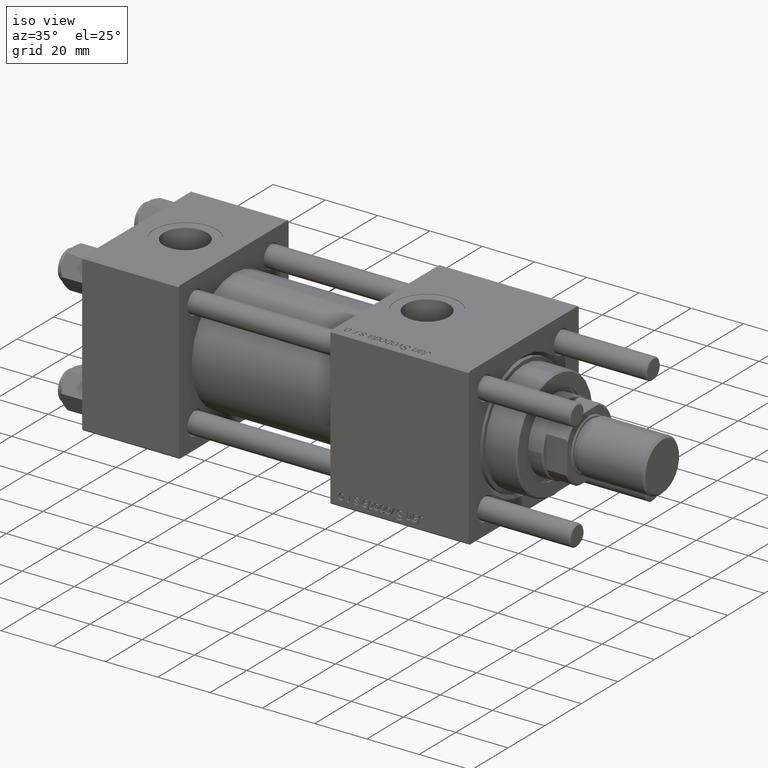
[diagram: clean part render]
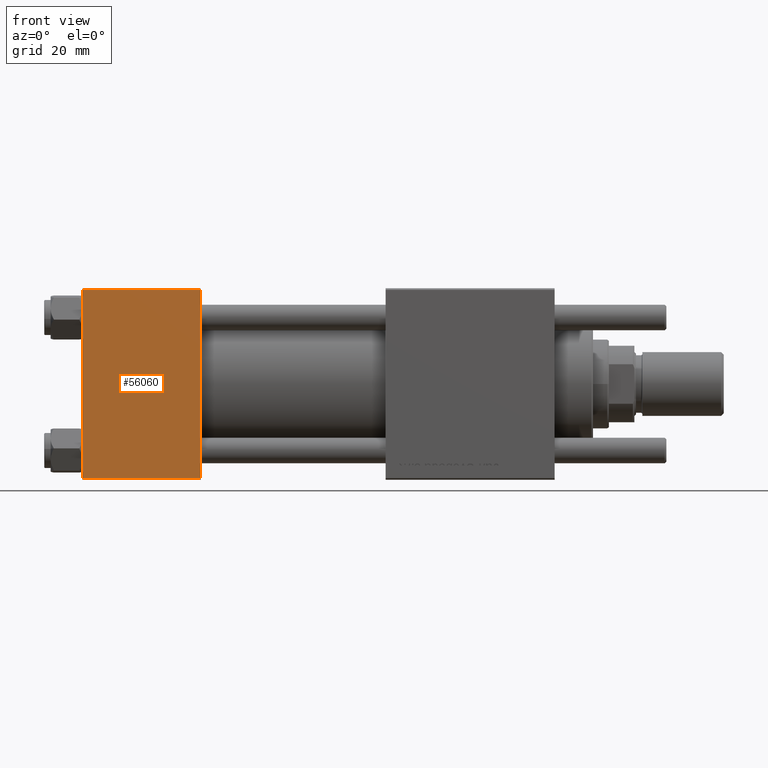
[diagram: tour spotlight — one face highlighted and labeled with its STEP entity id]
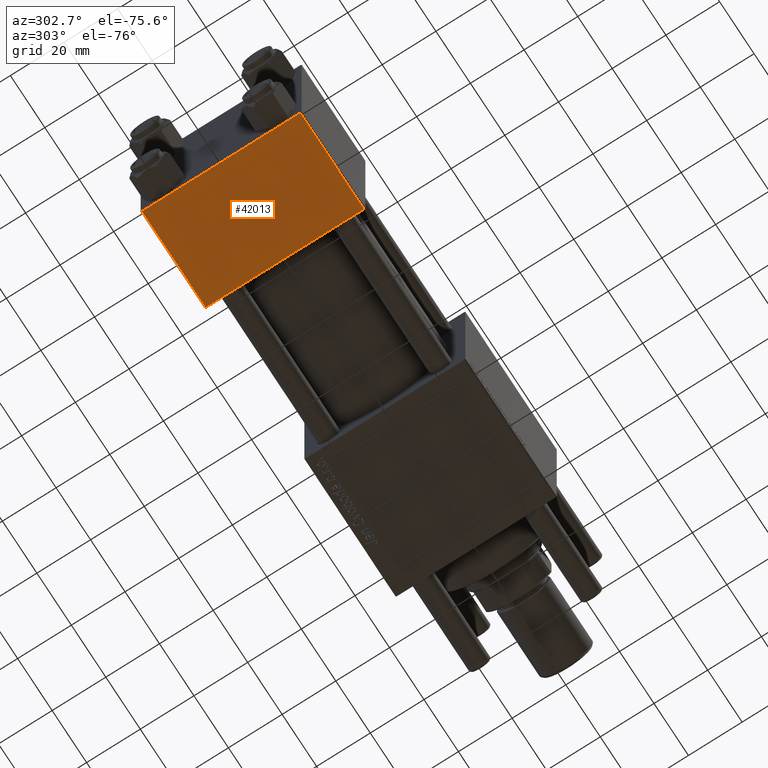
[diagram: tour spotlight — one face highlighted and labeled with its STEP entity id]
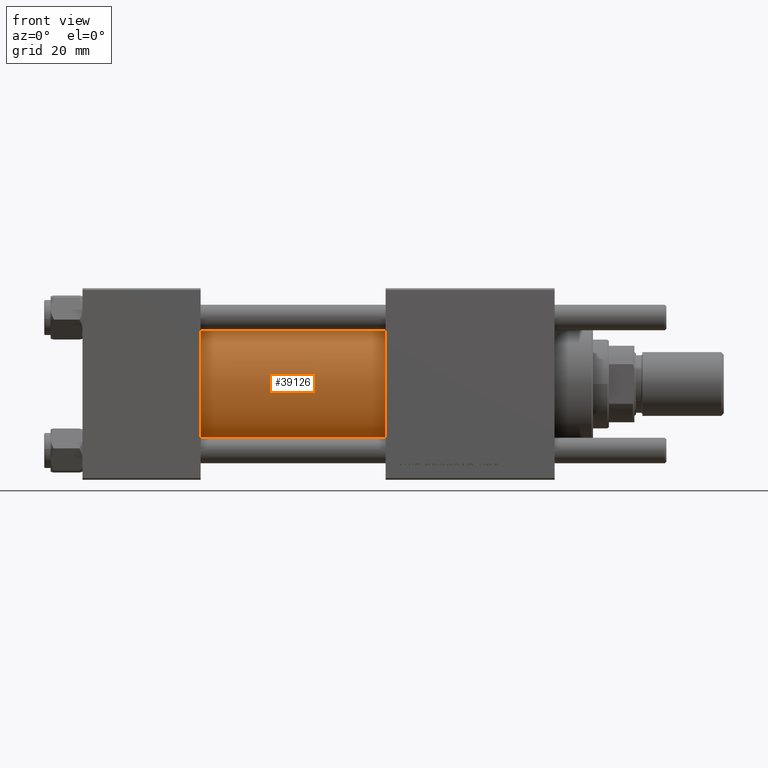
[diagram: tour spotlight — one face highlighted and labeled with its STEP entity id]
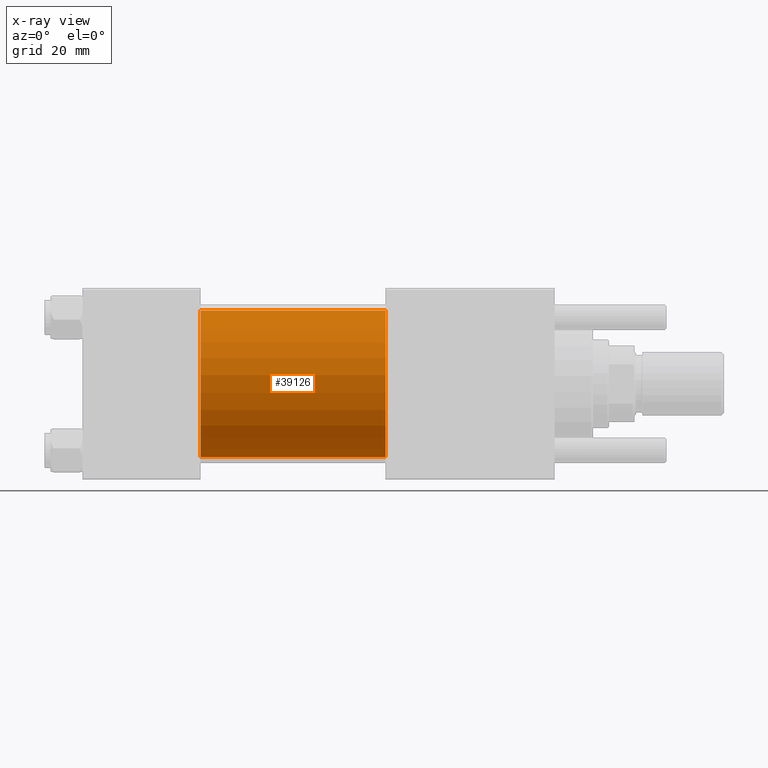
[diagram: x-ray of the same camera — body ghosted, this tour face saturated]
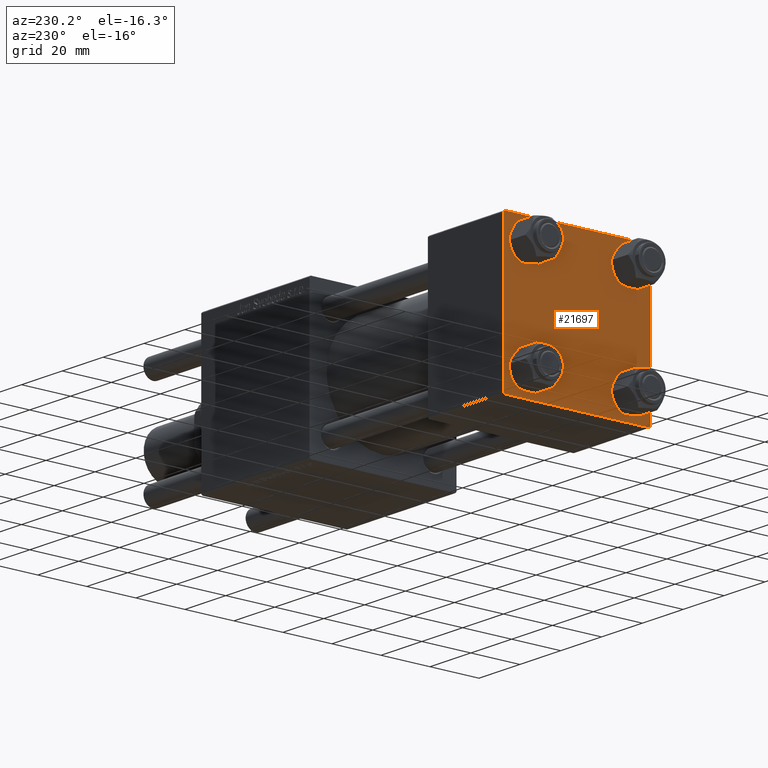
[diagram: tour spotlight — one face highlighted and labeled with its STEP entity id]
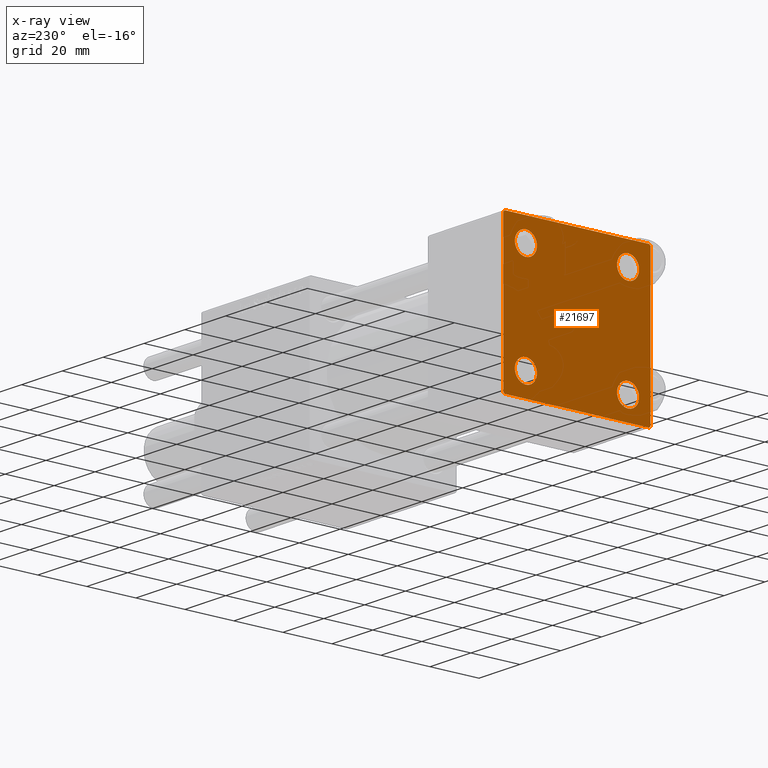
[diagram: x-ray of the same camera — body ghosted, this tour face saturated]
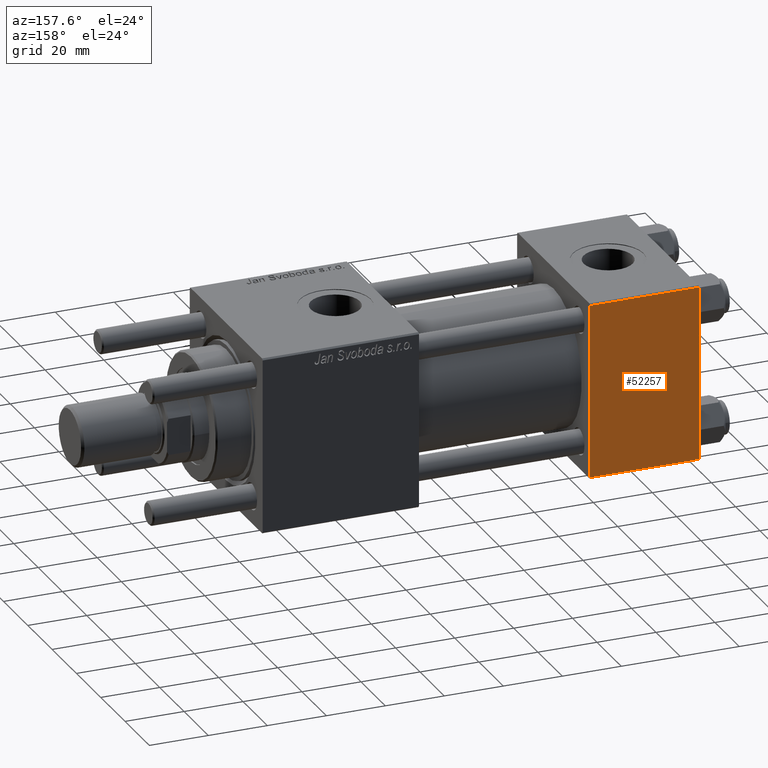
[diagram: tour spotlight — one face highlighted and labeled with its STEP entity id]
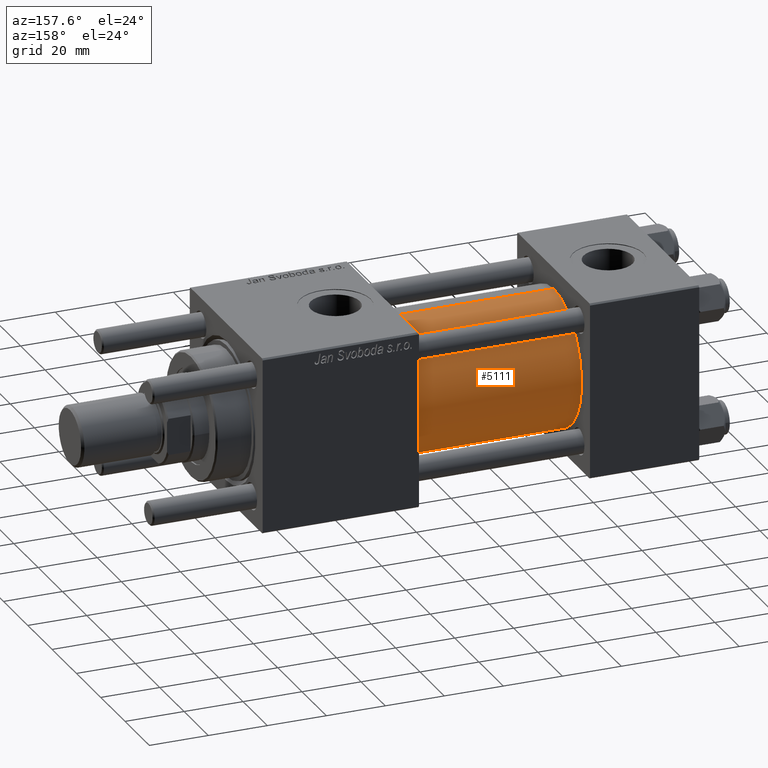
[diagram: tour spotlight — one face highlighted and labeled with its STEP entity id]
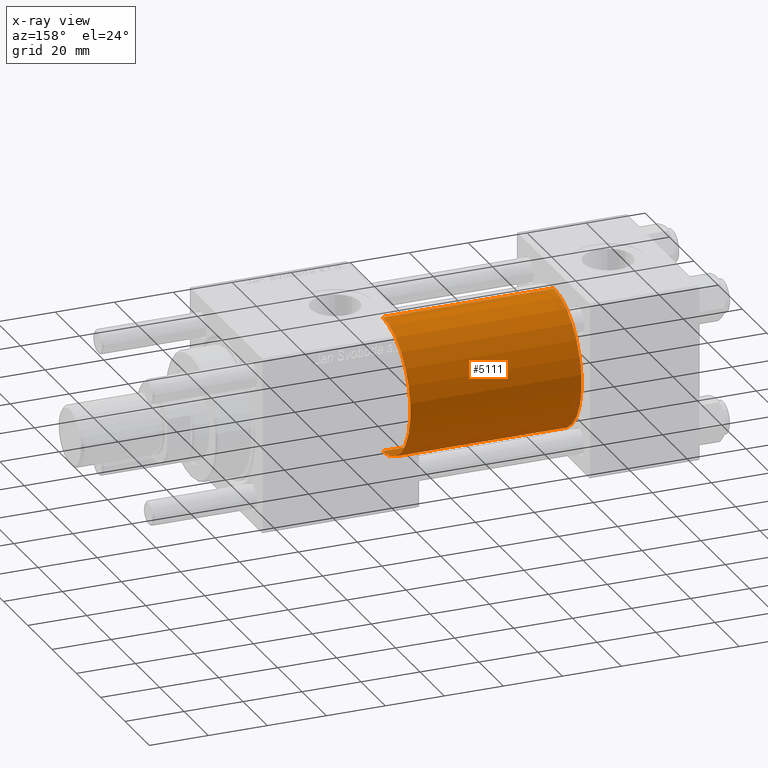
[diagram: x-ray of the same camera — body ghosted, this tour face saturated]
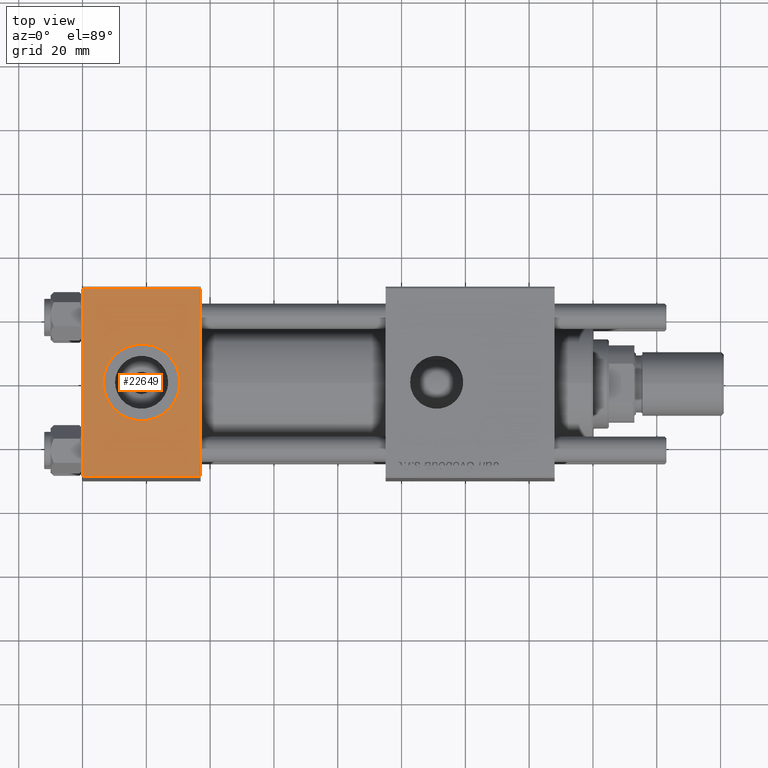
[diagram: tour spotlight — one face highlighted and labeled with its STEP entity id]
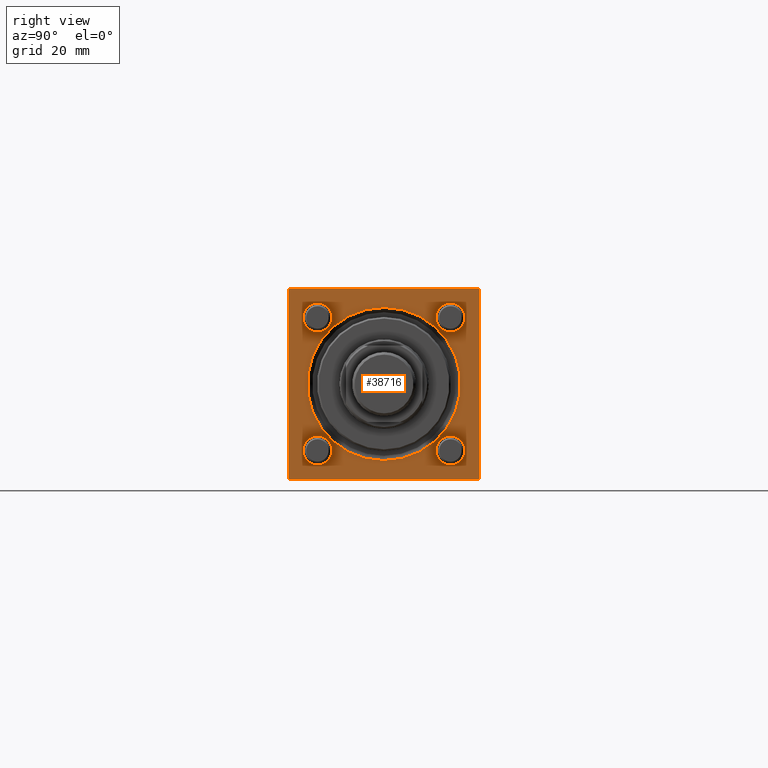
[diagram: tour spotlight — one face highlighted and labeled with its STEP entity id]
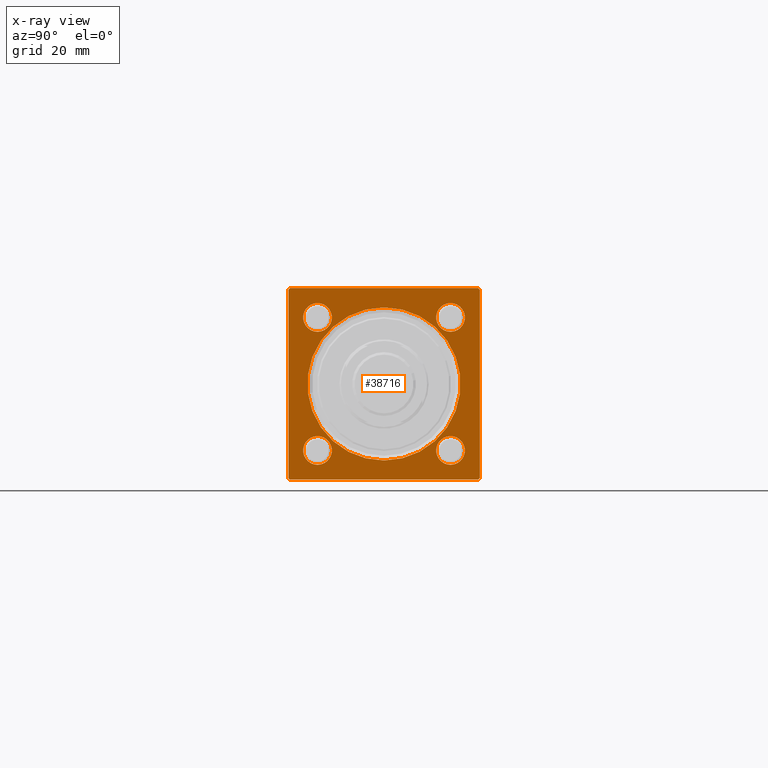
[diagram: x-ray of the same camera — body ghosted, this tour face saturated]
A machine part: a face-by-face anatomy tour. The part has 1173 B-rep faces; the first image is the clean iso view, then the 8 largest visible faces are spotlighted one at a time (largest first), each with its STEP entity span.

Face 1 — front view, entity #56060. In plain terms, the highlighted planar face has unit normal (0, 1, 0).
Definition (entity closure, byte-faithful):
#609 = DIRECTION ( 'NONE',  ( -0.000000000000000000, 1.000000000000000000, 0.000000000000000000 ) ) ;
#716 = LINE ( 'NONE', #9982, #42517 ) ;
#739 = EDGE_CURVE ( 'NONE', #25377, #25747, #716, .T. ) ;
#1679 = EDGE_LOOP ( 'NONE', ( #31847, #15416, #33914, #16651 ) ) ;
#3484 = VECTOR ( 'NONE', #41322, 1000.000000000000000 ) ;
#4329 = CARTESIAN_POINT ( 'NONE',  ( 37.00000000000000000, -30.00000000000000000, -29.50000000000001776 ) ) ;
#9026 = DIRECTION ( 'NONE',  ( 0.000000000000000000, -0.000000000000000000, 1.000000000000000000 ) ) ;
#9982 = CARTESIAN_POINT ( 'NONE',  ( 37.00000000000000000, -30.00000000000000000, 29.49999999999999289 ) ) ;
#11288 = LINE ( 'NONE', #21112, #24784 ) ;
#13941 = AXIS2_PLACEMENT_3D ( 'NONE', #35674, #609, #9026 ) ;
#15416 = ORIENTED_EDGE ( 'NONE', *, *, #27719, .T. ) ;
#16651 = ORIENTED_EDGE ( 'NONE', *, *, #739, .T. ) ;
#21112 = CARTESIAN_POINT ( 'NONE',  ( 37.00000000000000000, -30.00000000000000000, 29.99999999999999289 ) ) ;
#21813 = VECTOR ( 'NONE', #55054, 1000.000000000000000 ) ;
#24784 = VECTOR ( 'NONE', #33587, 1000.000000000000000 ) ;
#25377 = VERTEX_POINT ( 'NONE', #51514 ) ;
#25513 = CARTESIAN_POINT ( 'NONE',  ( 0.000000000000000000, -30.00000000000000000, 29.49999999999999289 ) ) ;
#25747 = VERTEX_POINT ( 'NONE', #25513 ) ;
#26980 = FACE_OUTER_BOUND ( 'NONE', #1679, .T. ) ;
#27719 = EDGE_CURVE ( 'NONE', #38371, #56192, #33320, .T. ) ;
#31847 = ORIENTED_EDGE ( 'NONE', *, *, #39520, .T. ) ;
#32282 = DIRECTION ( 'NONE',  ( -1.000000000000000000, 0.000000000000000000, 0.000000000000000000 ) ) ;
#33320 = LINE ( 'NONE', #42015, #21813 ) ;
#33587 = DIRECTION ( 'NONE',  ( 0.000000000000000000, 0.000000000000000000, -1.000000000000000000 ) ) ;
#33914 = ORIENTED_EDGE ( 'NONE', *, *, #39090, .F. ) ;
#35391 = PLANE ( 'NONE',  #13941 ) ;
#35674 = CARTESIAN_POINT ( 'NONE',  ( 37.00000000000000000, -30.00000000000000000, 29.99999999999999289 ) ) ;
#38371 = VERTEX_POINT ( 'NONE', #54168 ) ;
#39090 = EDGE_CURVE ( 'NONE', #25377, #56192, #11288, .T. ) ;
#39520 = EDGE_CURVE ( 'NONE', #25747, #38371, #40760, .T. ) ;
#40760 = LINE ( 'NONE', #49728, #3484 ) ;
#41322 = DIRECTION ( 'NONE',  ( 0.000000000000000000, 0.000000000000000000, -1.000000000000000000 ) ) ;
#42015 = CARTESIAN_POINT ( 'NONE',  ( 37.00000000000000000, -30.00000000000000000, -29.50000000000001776 ) ) ;
#42517 = VECTOR ( 'NONE', #32282, 1000.000000000000000 ) ;
#49728 = CARTESIAN_POINT ( 'NONE',  ( 0.000000000000000000, -30.00000000000000000, 29.99999999999999289 ) ) ;
#51514 = CARTESIAN_POINT ( 'NONE',  ( 37.00000000000000000, -30.00000000000000000, 29.49999999999999289 ) ) ;
#54168 = CARTESIAN_POINT ( 'NONE',  ( 0.000000000000000000, -30.00000000000000000, -29.50000000000001776 ) ) ;
#55054 = DIRECTION ( 'NONE',  ( 1.000000000000000000, 0.000000000000000000, 0.000000000000000000 ) ) ;
#56060 = ADVANCED_FACE ( 'NONE', ( #26980 ), #35391, .F. ) ;
#56192 = VERTEX_POINT ( 'NONE', #4329 ) ;

Face 2 — auxiliary view, entity #42013. In plain terms, the highlighted planar face has unit normal (0, 0, -1).
Definition (entity closure, byte-faithful):
#319 = DIRECTION ( 'NONE',  ( 1.000000000000000000, 0.000000000000000000, 0.000000000000000000 ) ) ;
#1992 = ORIENTED_EDGE ( 'NONE', *, *, #39183, .F. ) ;
#5427 = AXIS2_PLACEMENT_3D ( 'NONE', #15820, #37858, #30288 ) ;
#5515 = ORIENTED_EDGE ( 'NONE', *, *, #12070, .T. ) ;
#7568 = CARTESIAN_POINT ( 'NONE',  ( 0.000000000000000000, -29.50000000000000000, -30.00000000000000711 ) ) ;
#9341 = CARTESIAN_POINT ( 'NONE',  ( 37.00000000000000000, -29.50000000000000000, -30.00000000000000711 ) ) ;
#9429 = VECTOR ( 'NONE', #319, 1000.000000000000000 ) ;
#11752 = LINE ( 'NONE', #52023, #20146 ) ;
#12070 = EDGE_CURVE ( 'NONE', #20610, #15362, #40014, .T. ) ;
#15362 = VERTEX_POINT ( 'NONE', #43471 ) ;
#15820 = CARTESIAN_POINT ( 'NONE',  ( 37.00000000000000000, 29.99999999999999289, -30.00000000000000000 ) ) ;
#17499 = VECTOR ( 'NONE', #54237, 1000.000000000000000 ) ;
#18227 = VERTEX_POINT ( 'NONE', #7568 ) ;
#18557 = CARTESIAN_POINT ( 'NONE',  ( 37.00000000000000000, 29.49999999999997868, -30.00000000000000000 ) ) ;
#20146 = VECTOR ( 'NONE', #43319, 1000.000000000000000 ) ;
#20610 = VERTEX_POINT ( 'NONE', #32007 ) ;
#22809 = LINE ( 'NONE', #48606, #51669 ) ;
#24344 = ORIENTED_EDGE ( 'NONE', *, *, #50314, .T. ) ;
#30288 = DIRECTION ( 'NONE',  ( 0.000000000000000000, 1.000000000000000000, 1.156482317317871725E-16 ) ) ;
#32007 = CARTESIAN_POINT ( 'NONE',  ( 0.000000000000000000, 29.49999999999997868, -30.00000000000000000 ) ) ;
#32342 = ORIENTED_EDGE ( 'NONE', *, *, #42705, .T. ) ;
#35288 = DIRECTION ( 'NONE',  ( 0.000000000000000000, -1.000000000000000000, -1.156482317317871725E-16 ) ) ;
#37858 = DIRECTION ( 'NONE',  ( 0.000000000000000000, 1.156482317317871725E-16, -1.000000000000000000 ) ) ;
#39183 = EDGE_CURVE ( 'NONE', #20610, #18227, #11752, .T. ) ;
#39960 = VERTEX_POINT ( 'NONE', #9341 ) ;
#40014 = LINE ( 'NONE', #18557, #9429 ) ;
#40350 = CARTESIAN_POINT ( 'NONE',  ( 0.000000000000000000, -29.50000000000001066, -30.00000000000000711 ) ) ;
#41320 = EDGE_LOOP ( 'NONE', ( #1992, #5515, #32342, #24344 ) ) ;
#42013 = ADVANCED_FACE ( 'NONE', ( #47104 ), #52036, .T. ) ;
#42705 = EDGE_CURVE ( 'NONE', #15362, #39960, #22809, .T. ) ;
#43319 = DIRECTION ( 'NONE',  ( 0.000000000000000000, -1.000000000000000000, -1.156482317317871725E-16 ) ) ;
#43471 = CARTESIAN_POINT ( 'NONE',  ( 37.00000000000000000, 29.49999999999997868, -30.00000000000000000 ) ) ;
#44966 = LINE ( 'NONE', #40350, #17499 ) ;
#47104 = FACE_OUTER_BOUND ( 'NONE', #41320, .T. ) ;
#48606 = CARTESIAN_POINT ( 'NONE',  ( 37.00000000000000000, 29.99999999999999289, -30.00000000000000000 ) ) ;
#50314 = EDGE_CURVE ( 'NONE', #39960, #18227, #44966, .T. ) ;
#51669 = VECTOR ( 'NONE', #35288, 1000.000000000000000 ) ;
#52023 = CARTESIAN_POINT ( 'NONE',  ( 0.000000000000000000, 29.99999999999999289, -30.00000000000000000 ) ) ;
#52036 = PLANE ( 'NONE',  #5427 ) ;
#54237 = DIRECTION ( 'NONE',  ( -1.000000000000000000, 0.000000000000000000, 0.000000000000000000 ) ) ;

Face 3 — front view, entity #39126. An x-ray twin of the same camera follows (body ghosted, this face saturated) — the face is partly hidden behind the body. In plain terms, the highlighted cylindrical surface (partial cylindrical patch) has radius 23 mm, axis along (-1, -0, -0).
Definition (entity closure, byte-faithful):
#5049 = LINE ( 'NONE', #40112, #6336 ) ;
#5201 = ORIENTED_EDGE ( 'NONE', *, *, #6863, .F. ) ;
#6336 = VECTOR ( 'NONE', #44448, 1000.000000000000000 ) ;
#6863 = EDGE_CURVE ( 'NONE', #13856, #33267, #14016, .T. ) ;
#13186 = CARTESIAN_POINT ( 'NONE',  ( 37.00000000000000000, 2.146024240737012665E-16, -23.00000000000000000 ) ) ;
#13856 = VERTEX_POINT ( 'NONE', #26220 ) ;
#14016 = CIRCLE ( 'NONE', #15869, 23.00000000000000000 ) ;
#15869 = AXIS2_PLACEMENT_3D ( 'NONE', #23737, #36511, #19689 ) ;
#18330 = ORIENTED_EDGE ( 'NONE', *, *, #49216, .F. ) ;
#18919 = EDGE_LOOP ( 'NONE', ( #18330, #5201, #26004, #39441 ) ) ;
#19356 = CIRCLE ( 'NONE', #57333, 23.00000000000000000 ) ;
#19689 = DIRECTION ( 'NONE',  ( 0.000000000000000000, 0.000000000000000000, -1.000000000000000000 ) ) ;
#21271 = VERTEX_POINT ( 'NONE', #13186 ) ;
#21962 = CARTESIAN_POINT ( 'NONE',  ( 95.00000000000000000, -2.602085213965210642E-15, 0.000000000000000000 ) ) ;
#23737 = CARTESIAN_POINT ( 'NONE',  ( 95.00000000000000000, -2.602085213965210642E-15, 0.000000000000000000 ) ) ;
#25336 = DIRECTION ( 'NONE',  ( 0.000000000000000000, 0.000000000000000000, 1.000000000000000000 ) ) ;
#26004 = ORIENTED_EDGE ( 'NONE', *, *, #56111, .T. ) ;
#26220 = CARTESIAN_POINT ( 'NONE',  ( 95.00000000000000000, -2.602085213965210642E-15, 23.00000000000000000 ) ) ;
#26888 = VECTOR ( 'NONE', #45498, 1000.000000000000000 ) ;
#27297 = VERTEX_POINT ( 'NONE', #32237 ) ;
#27959 = CARTESIAN_POINT ( 'NONE',  ( 95.00000000000000000, 2.146024240737012665E-16, -23.00000000000000000 ) ) ;
#28397 = CARTESIAN_POINT ( 'NONE',  ( 95.00000000000000000, -2.602085213965210642E-15, 23.00000000000000000 ) ) ;
#32237 = CARTESIAN_POINT ( 'NONE',  ( 37.00000000000000000, -2.602085213965210642E-15, 23.00000000000000000 ) ) ;
#33267 = VERTEX_POINT ( 'NONE', #27959 ) ;
#35001 = FACE_OUTER_BOUND ( 'NONE', #18919, .T. ) ;
#36511 = DIRECTION ( 'NONE',  ( 1.000000000000000000, 0.000000000000000000, 0.000000000000000000 ) ) ;
#37738 = AXIS2_PLACEMENT_3D ( 'NONE', #21962, #43415, #52682 ) ;
#38667 = CARTESIAN_POINT ( 'NONE',  ( 37.00000000000000000, -2.602085213965210642E-15, 0.000000000000000000 ) ) ;
#39078 = CYLINDRICAL_SURFACE ( 'NONE', #37738, 23.00000000000000000 ) ;
#39126 = ADVANCED_FACE ( 'NONE', ( #35001 ), #39078, .T. ) ;
#39441 = ORIENTED_EDGE ( 'NONE', *, *, #51869, .T. ) ;
#40112 = CARTESIAN_POINT ( 'NONE',  ( 95.00000000000000000, 2.146024240737012665E-16, -23.00000000000000000 ) ) ;
#43415 = DIRECTION ( 'NONE',  ( -1.000000000000000000, -0.000000000000000000, -0.000000000000000000 ) ) ;
#44448 = DIRECTION ( 'NONE',  ( -1.000000000000000000, -0.000000000000000000, -0.000000000000000000 ) ) ;
#45498 = DIRECTION ( 'NONE',  ( -1.000000000000000000, -0.000000000000000000, -0.000000000000000000 ) ) ;
#46072 = LINE ( 'NONE', #28397, #26888 ) ;
#49216 = EDGE_CURVE ( 'NONE', #33267, #21271, #5049, .T. ) ;
#51695 = DIRECTION ( 'NONE',  ( 1.000000000000000000, -0.000000000000000000, 0.000000000000000000 ) ) ;
#51869 = EDGE_CURVE ( 'NONE', #27297, #21271, #19356, .T. ) ;
#52682 = DIRECTION ( 'NONE',  ( 0.000000000000000000, 0.000000000000000000, 1.000000000000000000 ) ) ;
#56111 = EDGE_CURVE ( 'NONE', #13856, #27297, #46072, .T. ) ;
#57333 = AXIS2_PLACEMENT_3D ( 'NONE', #38667, #51695, #25336 ) ;

Face 4 — auxiliary view, entity #21697. An x-ray twin of the same camera follows (body ghosted, this face saturated) — the face is partly hidden behind the body. In plain terms, the highlighted planar face has unit normal (-1, 0, 0).
Definition (entity closure, byte-faithful):
#396 = VECTOR ( 'NONE', #56287, 1000.000000000000114 ) ;
#552 = EDGE_CURVE ( 'NONE', #18227, #38371, #11770, .T. ) ;
#1181 = LINE ( 'NONE', #52788, #25034 ) ;
#1477 = CARTESIAN_POINT ( 'NONE',  ( 0.000000000000000000, 0.000000000000000000, 0.000000000000000000 ) ) ;
#1981 = VERTEX_POINT ( 'NONE', #37888 ) ;
#2066 = DIRECTION ( 'NONE',  ( -1.000000000000000000, 0.000000000000000000, -0.000000000000000000 ) ) ;
#2314 = ORIENTED_EDGE ( 'NONE', *, *, #6584, .T. ) ;
#2813 = CIRCLE ( 'NONE', #17611, 4.500000000000017764 ) ;
#3484 = VECTOR ( 'NONE', #41322, 1000.000000000000000 ) ;
#3742 = ORIENTED_EDGE ( 'NONE', *, *, #45938, .T. ) ;
#3984 = VERTEX_POINT ( 'NONE', #48927 ) ;
#4121 = EDGE_CURVE ( 'NONE', #54496, #28676, #2813, .T. ) ;
#4380 = CARTESIAN_POINT ( 'NONE',  ( 0.000000000000000000, 20.84999999999999787, -20.85000000000000142 ) ) ;
#4393 = VECTOR ( 'NONE', #28951, 999.9999999999998863 ) ;
#4504 = DIRECTION ( 'NONE',  ( 0.000000000000000000, -0.7071067811865474617, 0.7071067811865474617 ) ) ;
#5153 = AXIS2_PLACEMENT_3D ( 'NONE', #4380, #35379, #48698 ) ;
#5668 = VERTEX_POINT ( 'NONE', #50459 ) ;
#5840 = FACE_BOUND ( 'NONE', #8056, .T. ) ;
#6040 = ORIENTED_EDGE ( 'NONE', *, *, #7995, .T. ) ;
#6431 = DIRECTION ( 'NONE',  ( 1.000000000000000000, -0.000000000000000000, 0.000000000000000000 ) ) ;
#6584 = EDGE_CURVE ( 'NONE', #12710, #5668, #26050, .T. ) ;
#6788 = CARTESIAN_POINT ( 'NONE',  ( 0.000000000000000000, -29.49999999999998579, 29.99999999999999289 ) ) ;
#7523 = AXIS2_PLACEMENT_3D ( 'NONE', #20334, #55690, #15982 ) ;
#7568 = CARTESIAN_POINT ( 'NONE',  ( 0.000000000000000000, -29.50000000000000000, -30.00000000000000711 ) ) ;
#7583 = EDGE_LOOP ( 'NONE', ( #47351, #6040 ) ) ;
#7976 = DIRECTION ( 'NONE',  ( 0.000000000000000000, 0.000000000000000000, 1.000000000000000000 ) ) ;
#7995 = EDGE_CURVE ( 'NONE', #28676, #54496, #53856, .T. ) ;
#8056 = EDGE_LOOP ( 'NONE', ( #3742, #2314 ) ) ;
#8674 = ORIENTED_EDGE ( 'NONE', *, *, #23966, .T. ) ;
#9383 = CIRCLE ( 'NONE', #41765, 4.500000000000017764 ) ;
#9899 = ORIENTED_EDGE ( 'NONE', *, *, #39092, .T. ) ;
#10102 = VECTOR ( 'NONE', #37570, 1000.000000000000000 ) ;
#10384 = EDGE_CURVE ( 'NONE', #43332, #3984, #9383, .T. ) ;
#10779 = DIRECTION ( 'NONE',  ( 0.000000000000000000, 0.000000000000000000, 1.000000000000000000 ) ) ;
#10819 = CARTESIAN_POINT ( 'NONE',  ( 0.000000000000000000, -20.84999999999999076, 25.35000000000002274 ) ) ;
#10974 = AXIS2_PLACEMENT_3D ( 'NONE', #49948, #23861, #14322 ) ;
#11681 = EDGE_LOOP ( 'NONE', ( #54147, #39349 ) ) ;
#11752 = LINE ( 'NONE', #52023, #20146 ) ;
#11770 = LINE ( 'NONE', #56094, #21259 ) ;
#12710 = VERTEX_POINT ( 'NONE', #46503 ) ;
#14322 = DIRECTION ( 'NONE',  ( 0.000000000000000000, 0.000000000000000000, 1.000000000000000000 ) ) ;
#15382 = FACE_BOUND ( 'NONE', #21025, .T. ) ;
#15536 = CARTESIAN_POINT ( 'NONE',  ( 0.000000000000000000, 29.99999999999999289, 30.00000000000000000 ) ) ;
#15982 = DIRECTION ( 'NONE',  ( 0.000000000000000000, 0.000000000000000000, 1.000000000000000000 ) ) ;
#16504 = CIRCLE ( 'NONE', #10974, 4.500000000000017764 ) ;
#16763 = DIRECTION ( 'NONE',  ( 1.000000000000000000, -0.000000000000000000, 0.000000000000000000 ) ) ;
#17611 = AXIS2_PLACEMENT_3D ( 'NONE', #21079, #55281, #51223 ) ;
#18227 = VERTEX_POINT ( 'NONE', #7568 ) ;
#18386 = CARTESIAN_POINT ( 'NONE',  ( 0.000000000000000000, 29.49999999999999289, 30.00000000000000000 ) ) ;
#18421 = CIRCLE ( 'NONE', #32307, 4.500000000000017764 ) ;
#18873 = FACE_OUTER_BOUND ( 'NONE', #28737, .T. ) ;
#20146 = VECTOR ( 'NONE', #43319, 1000.000000000000000 ) ;
#20334 = CARTESIAN_POINT ( 'NONE',  ( 0.000000000000000000, -20.84999999999999076, -20.85000000000000497 ) ) ;
#20610 = VERTEX_POINT ( 'NONE', #32007 ) ;
#20752 = ORIENTED_EDGE ( 'NONE', *, *, #54664, .T. ) ;
#20936 = CARTESIAN_POINT ( 'NONE',  ( 0.000000000000000000, 29.99999999999999289, 29.50000000000000000 ) ) ;
#21008 = CARTESIAN_POINT ( 'NONE',  ( 0.000000000000000000, -20.84999999999999076, 20.85000000000000497 ) ) ;
#21025 = EDGE_LOOP ( 'NONE', ( #50098, #52931 ) ) ;
#21079 = CARTESIAN_POINT ( 'NONE',  ( 0.000000000000000000, -20.84999999999999076, 20.85000000000000497 ) ) ;
#21259 = VECTOR ( 'NONE', #4504, 1000.000000000000114 ) ;
#21697 = ADVANCED_FACE ( 'NONE', ( #45519, #5840, #15382, #55089, #18873 ), #46094, .T. ) ;
#22200 = VERTEX_POINT ( 'NONE', #6788 ) ;
#22354 = DIRECTION ( 'NONE',  ( 0.000000000000000000, 0.7071067811865474617, -0.7071067811865474617 ) ) ;
#23861 = DIRECTION ( 'NONE',  ( 1.000000000000000000, -0.000000000000000000, 0.000000000000000000 ) ) ;
#23966 = EDGE_CURVE ( 'NONE', #25747, #22200, #42385, .T. ) ;
#23988 = VERTEX_POINT ( 'NONE', #20936 ) ;
#25034 = VECTOR ( 'NONE', #22354, 1000.000000000000114 ) ;
#25406 = VERTEX_POINT ( 'NONE', #36621 ) ;
#25513 = CARTESIAN_POINT ( 'NONE',  ( 0.000000000000000000, -30.00000000000000000, 29.49999999999999289 ) ) ;
#25747 = VERTEX_POINT ( 'NONE', #25513 ) ;
#26050 = CIRCLE ( 'NONE', #7523, 4.500000000000017764 ) ;
#27491 = EDGE_CURVE ( 'NONE', #25406, #1981, #34756, .T. ) ;
#27847 = DIRECTION ( 'NONE',  ( -0.000000000000000000, 0.000000000000000000, 1.000000000000000000 ) ) ;
#28676 = VERTEX_POINT ( 'NONE', #33622 ) ;
#28737 = EDGE_LOOP ( 'NONE', ( #51798, #9899, #49823, #38292, #53238, #8674, #36540, #20752 ) ) ;
#28951 = DIRECTION ( 'NONE',  ( -0.000000000000000000, -0.7071067811865574537, -0.7071067811865376918 ) ) ;
#29232 = CARTESIAN_POINT ( 'NONE',  ( 0.000000000000000000, 29.74999999999957723, -29.75000000000040501 ) ) ;
#32007 = CARTESIAN_POINT ( 'NONE',  ( 0.000000000000000000, 29.49999999999997868, -30.00000000000000000 ) ) ;
#32307 = AXIS2_PLACEMENT_3D ( 'NONE', #56470, #16763, #39086 ) ;
#33370 = CARTESIAN_POINT ( 'NONE',  ( 0.000000000000000000, 20.84999999999999787, 20.85000000000000142 ) ) ;
#33622 = CARTESIAN_POINT ( 'NONE',  ( 0.000000000000000000, -20.84999999999999076, 16.34999999999998721 ) ) ;
#33654 = AXIS2_PLACEMENT_3D ( 'NONE', #1477, #2066, #27847 ) ;
#34042 = DIRECTION ( 'NONE',  ( 1.000000000000000000, -0.000000000000000000, 0.000000000000000000 ) ) ;
#34046 = DIRECTION ( 'NONE',  ( 1.000000000000000000, -0.000000000000000000, 0.000000000000000000 ) ) ;
#34756 = CIRCLE ( 'NONE', #5153, 4.500000000000017764 ) ;
#35379 = DIRECTION ( 'NONE',  ( 1.000000000000000000, -0.000000000000000000, 0.000000000000000000 ) ) ;
#36540 = ORIENTED_EDGE ( 'NONE', *, *, #50201, .F. ) ;
#36621 = CARTESIAN_POINT ( 'NONE',  ( 0.000000000000000000, 20.84999999999999787, -16.34999999999998366 ) ) ;
#37570 = DIRECTION ( 'NONE',  ( 0.000000000000000000, -1.000000000000000000, -1.156482317317871725E-16 ) ) ;
#37888 = CARTESIAN_POINT ( 'NONE',  ( 0.000000000000000000, 20.84999999999999787, -25.35000000000001918 ) ) ;
#38292 = ORIENTED_EDGE ( 'NONE', *, *, #552, .T. ) ;
#38371 = VERTEX_POINT ( 'NONE', #54168 ) ;
#38891 = CARTESIAN_POINT ( 'NONE',  ( 0.000000000000000000, 29.99999999999999289, 30.00000000000000000 ) ) ;
#38934 = LINE ( 'NONE', #15536, #10102 ) ;
#39086 = DIRECTION ( 'NONE',  ( 0.000000000000000000, 0.000000000000000000, 1.000000000000000000 ) ) ;
#39092 = EDGE_CURVE ( 'NONE', #42112, #20610, #55895, .T. ) ;
#39183 = EDGE_CURVE ( 'NONE', #20610, #18227, #11752, .T. ) ;
#39264 = CARTESIAN_POINT ( 'NONE',  ( 0.000000000000000000, 20.84999999999999787, 20.85000000000000142 ) ) ;
#39349 = ORIENTED_EDGE ( 'NONE', *, *, #49114, .T. ) ;
#39520 = EDGE_CURVE ( 'NONE', #25747, #38371, #40760, .T. ) ;
#39795 = VERTEX_POINT ( 'NONE', #18386 ) ;
#40760 = LINE ( 'NONE', #49728, #3484 ) ;
#41322 = DIRECTION ( 'NONE',  ( 0.000000000000000000, 0.000000000000000000, -1.000000000000000000 ) ) ;
#41765 = AXIS2_PLACEMENT_3D ( 'NONE', #33370, #6431, #10779 ) ;
#42112 = VERTEX_POINT ( 'NONE', #53452 ) ;
#42288 = EDGE_CURVE ( 'NONE', #1981, #25406, #16504, .T. ) ;
#42385 = LINE ( 'NONE', #51361, #396 ) ;
#42447 = CIRCLE ( 'NONE', #56308, 4.500000000000017764 ) ;
#42702 = CARTESIAN_POINT ( 'NONE',  ( 0.000000000000000000, 20.84999999999999787, 25.35000000000001918 ) ) ;
#43319 = DIRECTION ( 'NONE',  ( 0.000000000000000000, -1.000000000000000000, -1.156482317317871725E-16 ) ) ;
#43332 = VERTEX_POINT ( 'NONE', #42702 ) ;
#45519 = FACE_BOUND ( 'NONE', #7583, .T. ) ;
#45938 = EDGE_CURVE ( 'NONE', #5668, #12710, #18421, .T. ) ;
#46094 = PLANE ( 'NONE',  #33654 ) ;
#46503 = CARTESIAN_POINT ( 'NONE',  ( 0.000000000000000000, -20.84999999999999076, -25.35000000000002274 ) ) ;
#47351 = ORIENTED_EDGE ( 'NONE', *, *, #4121, .T. ) ;
#47574 = DIRECTION ( 'NONE',  ( 0.000000000000000000, 0.000000000000000000, -1.000000000000000000 ) ) ;
#48698 = DIRECTION ( 'NONE',  ( 0.000000000000000000, 0.000000000000000000, 1.000000000000000000 ) ) ;
#48927 = CARTESIAN_POINT ( 'NONE',  ( 0.000000000000000000, 20.84999999999999787, 16.34999999999998366 ) ) ;
#49114 = EDGE_CURVE ( 'NONE', #3984, #43332, #42447, .T. ) ;
#49728 = CARTESIAN_POINT ( 'NONE',  ( 0.000000000000000000, -30.00000000000000000, 29.99999999999999289 ) ) ;
#49823 = ORIENTED_EDGE ( 'NONE', *, *, #39183, .T. ) ;
#49948 = CARTESIAN_POINT ( 'NONE',  ( 0.000000000000000000, 20.84999999999999787, -20.85000000000000142 ) ) ;
#50098 = ORIENTED_EDGE ( 'NONE', *, *, #27491, .T. ) ;
#50201 = EDGE_CURVE ( 'NONE', #39795, #22200, #38934, .T. ) ;
#50459 = CARTESIAN_POINT ( 'NONE',  ( 0.000000000000000000, -20.84999999999999076, -16.34999999999998721 ) ) ;
#51223 = DIRECTION ( 'NONE',  ( 0.000000000000000000, 0.000000000000000000, 1.000000000000000000 ) ) ;
#51361 = CARTESIAN_POINT ( 'NONE',  ( -0.000000000000000000, -29.74999999999999645, 29.74999999999999645 ) ) ;
#51716 = DIRECTION ( 'NONE',  ( 0.000000000000000000, 0.000000000000000000, 1.000000000000000000 ) ) ;
#51798 = ORIENTED_EDGE ( 'NONE', *, *, #53799, .T. ) ;
#51989 = AXIS2_PLACEMENT_3D ( 'NONE', #21008, #34042, #51716 ) ;
#52023 = CARTESIAN_POINT ( 'NONE',  ( 0.000000000000000000, 29.99999999999999289, -30.00000000000000000 ) ) ;
#52788 = CARTESIAN_POINT ( 'NONE',  ( 0.000000000000000000, 29.74999999999999645, 29.74999999999999645 ) ) ;
#52931 = ORIENTED_EDGE ( 'NONE', *, *, #42288, .T. ) ;
#53238 = ORIENTED_EDGE ( 'NONE', *, *, #39520, .F. ) ;
#53452 = CARTESIAN_POINT ( 'NONE',  ( 0.000000000000000000, 29.99999999999999289, -29.50000000000000000 ) ) ;
#53799 = EDGE_CURVE ( 'NONE', #23988, #42112, #56843, .T. ) ;
#53856 = CIRCLE ( 'NONE', #51989, 4.500000000000017764 ) ;
#54147 = ORIENTED_EDGE ( 'NONE', *, *, #10384, .T. ) ;
#54168 = CARTESIAN_POINT ( 'NONE',  ( 0.000000000000000000, -30.00000000000000000, -29.50000000000001776 ) ) ;
#54496 = VERTEX_POINT ( 'NONE', #10819 ) ;
#54664 = EDGE_CURVE ( 'NONE', #39795, #23988, #1181, .T. ) ;
#55089 = FACE_BOUND ( 'NONE', #11681, .T. ) ;
#55281 = DIRECTION ( 'NONE',  ( 1.000000000000000000, -0.000000000000000000, 0.000000000000000000 ) ) ;
#55690 = DIRECTION ( 'NONE',  ( 1.000000000000000000, -0.000000000000000000, 0.000000000000000000 ) ) ;
#55895 = LINE ( 'NONE', #29232, #4393 ) ;
#56094 = CARTESIAN_POINT ( 'NONE',  ( 0.000000000000000000, -29.75000000000001066, -29.75000000000001066 ) ) ;
#56287 = DIRECTION ( 'NONE',  ( -0.000000000000000000, 0.7071067811865474617, 0.7071067811865474617 ) ) ;
#56308 = AXIS2_PLACEMENT_3D ( 'NONE', #39264, #34046, #7976 ) ;
#56466 = VECTOR ( 'NONE', #47574, 1000.000000000000000 ) ;
#56470 = CARTESIAN_POINT ( 'NONE',  ( 0.000000000000000000, -20.84999999999999076, -20.85000000000000497 ) ) ;
#56843 = LINE ( 'NONE', #38891, #56466 ) ;

Face 5 — auxiliary view, entity #52257. In plain terms, the highlighted planar face has unit normal (0, 1, 0).
Definition (entity closure, byte-faithful):
#744 = ORIENTED_EDGE ( 'NONE', *, *, #53466, .T. ) ;
#3070 = ORIENTED_EDGE ( 'NONE', *, *, #25404, .T. ) ;
#3246 = DIRECTION ( 'NONE',  ( 0.000000000000000000, -0.000000000000000000, 1.000000000000000000 ) ) ;
#6388 = VERTEX_POINT ( 'NONE', #10504 ) ;
#7598 = DIRECTION ( 'NONE',  ( -0.000000000000000000, 1.000000000000000000, 0.000000000000000000 ) ) ;
#7615 = CARTESIAN_POINT ( 'NONE',  ( 37.00000000000000000, 29.99999999999999289, 29.50000000000000000 ) ) ;
#8519 = EDGE_LOOP ( 'NONE', ( #744, #3070, #28537, #51569 ) ) ;
#8886 = DIRECTION ( 'NONE',  ( 0.000000000000000000, 0.000000000000000000, -1.000000000000000000 ) ) ;
#10504 = CARTESIAN_POINT ( 'NONE',  ( 37.00000000000000000, 29.99999999999999289, -29.50000000000000000 ) ) ;
#11967 = AXIS2_PLACEMENT_3D ( 'NONE', #38317, #7598, #3246 ) ;
#12879 = DIRECTION ( 'NONE',  ( 1.000000000000000000, 0.000000000000000000, 0.000000000000000000 ) ) ;
#16361 = LINE ( 'NONE', #47370, #36041 ) ;
#17813 = CARTESIAN_POINT ( 'NONE',  ( 37.00000000000000000, 29.99999999999999289, -29.50000000000000000 ) ) ;
#18987 = LINE ( 'NONE', #36666, #22180 ) ;
#20936 = CARTESIAN_POINT ( 'NONE',  ( 0.000000000000000000, 29.99999999999999289, 29.50000000000000000 ) ) ;
#22180 = VECTOR ( 'NONE', #8886, 1000.000000000000000 ) ;
#23988 = VERTEX_POINT ( 'NONE', #20936 ) ;
#25404 = EDGE_CURVE ( 'NONE', #6388, #42112, #31138, .T. ) ;
#28537 = ORIENTED_EDGE ( 'NONE', *, *, #53799, .F. ) ;
#29038 = FACE_OUTER_BOUND ( 'NONE', #8519, .T. ) ;
#31138 = LINE ( 'NONE', #17813, #38377 ) ;
#36041 = VECTOR ( 'NONE', #12879, 1000.000000000000000 ) ;
#36666 = CARTESIAN_POINT ( 'NONE',  ( 37.00000000000000000, 29.99999999999999289, 30.00000000000000000 ) ) ;
#38317 = CARTESIAN_POINT ( 'NONE',  ( 37.00000000000000000, 29.99999999999999289, 30.00000000000000000 ) ) ;
#38377 = VECTOR ( 'NONE', #40690, 1000.000000000000000 ) ;
#38891 = CARTESIAN_POINT ( 'NONE',  ( 0.000000000000000000, 29.99999999999999289, 30.00000000000000000 ) ) ;
#40690 = DIRECTION ( 'NONE',  ( -1.000000000000000000, 0.000000000000000000, 0.000000000000000000 ) ) ;
#42112 = VERTEX_POINT ( 'NONE', #53452 ) ;
#47370 = CARTESIAN_POINT ( 'NONE',  ( 37.00000000000000000, 29.99999999999999289, 29.50000000000000000 ) ) ;
#47574 = DIRECTION ( 'NONE',  ( 0.000000000000000000, 0.000000000000000000, -1.000000000000000000 ) ) ;
#48318 = EDGE_CURVE ( 'NONE', #23988, #54506, #16361, .T. ) ;
#51345 = PLANE ( 'NONE',  #11967 ) ;
#51569 = ORIENTED_EDGE ( 'NONE', *, *, #48318, .T. ) ;
#52257 = ADVANCED_FACE ( 'NONE', ( #29038 ), #51345, .T. ) ;
#53452 = CARTESIAN_POINT ( 'NONE',  ( 0.000000000000000000, 29.99999999999999289, -29.50000000000000000 ) ) ;
#53466 = EDGE_CURVE ( 'NONE', #54506, #6388, #18987, .T. ) ;
#53799 = EDGE_CURVE ( 'NONE', #23988, #42112, #56843, .T. ) ;
#54506 = VERTEX_POINT ( 'NONE', #7615 ) ;
#56466 = VECTOR ( 'NONE', #47574, 1000.000000000000000 ) ;
#56843 = LINE ( 'NONE', #38891, #56466 ) ;

Face 6 — auxiliary view, entity #5111. An x-ray twin of the same camera follows (body ghosted, this face saturated) — the face is partly hidden behind the body. In plain terms, the highlighted cylindrical surface (partial cylindrical patch) has radius 23 mm, axis along (-1, -0, -0).
Definition (entity closure, byte-faithful):
#418 = ORIENTED_EDGE ( 'NONE', *, *, #33602, .F. ) ;
#812 = ORIENTED_EDGE ( 'NONE', *, *, #49216, .T. ) ;
#4062 = EDGE_CURVE ( 'NONE', #21271, #27297, #30599, .T. ) ;
#5049 = LINE ( 'NONE', #40112, #6336 ) ;
#5111 = ADVANCED_FACE ( 'NONE', ( #9781 ), #44256, .T. ) ;
#5422 = DIRECTION ( 'NONE',  ( 0.000000000000000000, 0.000000000000000000, 1.000000000000000000 ) ) ;
#6093 = ORIENTED_EDGE ( 'NONE', *, *, #4062, .T. ) ;
#6336 = VECTOR ( 'NONE', #44448, 1000.000000000000000 ) ;
#9781 = FACE_OUTER_BOUND ( 'NONE', #29427, .T. ) ;
#11948 = DIRECTION ( 'NONE',  ( 0.000000000000000000, 0.000000000000000000, -1.000000000000000000 ) ) ;
#13186 = CARTESIAN_POINT ( 'NONE',  ( 37.00000000000000000, 2.146024240737012665E-16, -23.00000000000000000 ) ) ;
#13856 = VERTEX_POINT ( 'NONE', #26220 ) ;
#15005 = CARTESIAN_POINT ( 'NONE',  ( 37.00000000000000000, -2.602085213965210642E-15, 0.000000000000000000 ) ) ;
#21208 = DIRECTION ( 'NONE',  ( 1.000000000000000000, 0.000000000000000000, 0.000000000000000000 ) ) ;
#21271 = VERTEX_POINT ( 'NONE', #13186 ) ;
#26220 = CARTESIAN_POINT ( 'NONE',  ( 95.00000000000000000, -2.602085213965210642E-15, 23.00000000000000000 ) ) ;
#26604 = AXIS2_PLACEMENT_3D ( 'NONE', #56557, #21208, #11948 ) ;
#26888 = VECTOR ( 'NONE', #45498, 1000.000000000000000 ) ;
#27297 = VERTEX_POINT ( 'NONE', #32237 ) ;
#27436 = CARTESIAN_POINT ( 'NONE',  ( 95.00000000000000000, -2.602085213965210642E-15, 0.000000000000000000 ) ) ;
#27768 = AXIS2_PLACEMENT_3D ( 'NONE', #15005, #32689, #31845 ) ;
#27959 = CARTESIAN_POINT ( 'NONE',  ( 95.00000000000000000, 2.146024240737012665E-16, -23.00000000000000000 ) ) ;
#28397 = CARTESIAN_POINT ( 'NONE',  ( 95.00000000000000000, -2.602085213965210642E-15, 23.00000000000000000 ) ) ;
#29427 = EDGE_LOOP ( 'NONE', ( #418, #812, #6093, #39083 ) ) ;
#29690 = AXIS2_PLACEMENT_3D ( 'NONE', #27436, #53528, #5422 ) ;
#30599 = CIRCLE ( 'NONE', #27768, 23.00000000000000000 ) ;
#31845 = DIRECTION ( 'NONE',  ( 0.000000000000000000, 0.000000000000000000, 1.000000000000000000 ) ) ;
#32237 = CARTESIAN_POINT ( 'NONE',  ( 37.00000000000000000, -2.602085213965210642E-15, 23.00000000000000000 ) ) ;
#32689 = DIRECTION ( 'NONE',  ( 1.000000000000000000, -0.000000000000000000, 0.000000000000000000 ) ) ;
#33267 = VERTEX_POINT ( 'NONE', #27959 ) ;
#33602 = EDGE_CURVE ( 'NONE', #33267, #13856, #38613, .T. ) ;
#38613 = CIRCLE ( 'NONE', #26604, 23.00000000000000000 ) ;
#39083 = ORIENTED_EDGE ( 'NONE', *, *, #56111, .F. ) ;
#40112 = CARTESIAN_POINT ( 'NONE',  ( 95.00000000000000000, 2.146024240737012665E-16, -23.00000000000000000 ) ) ;
#44256 = CYLINDRICAL_SURFACE ( 'NONE', #29690, 23.00000000000000000 ) ;
#44448 = DIRECTION ( 'NONE',  ( -1.000000000000000000, -0.000000000000000000, -0.000000000000000000 ) ) ;
#45498 = DIRECTION ( 'NONE',  ( -1.000000000000000000, -0.000000000000000000, -0.000000000000000000 ) ) ;
#46072 = LINE ( 'NONE', #28397, #26888 ) ;
#49216 = EDGE_CURVE ( 'NONE', #33267, #21271, #5049, .T. ) ;
#53528 = DIRECTION ( 'NONE',  ( -1.000000000000000000, -0.000000000000000000, -0.000000000000000000 ) ) ;
#56111 = EDGE_CURVE ( 'NONE', #13856, #27297, #46072, .T. ) ;
#56557 = CARTESIAN_POINT ( 'NONE',  ( 95.00000000000000000, -2.602085213965210642E-15, 0.000000000000000000 ) ) ;

Face 7 — top view, entity #22649. In plain terms, the highlighted planar face has unit normal (0, 0, -1).
Definition (entity closure, byte-faithful):
#1118 = VERTEX_POINT ( 'NONE', #47473 ) ;
#1279 = CARTESIAN_POINT ( 'NONE',  ( 18.50000000000000000, -3.469446951953614978E-15, 29.99999999999999645 ) ) ;
#1299 = LINE ( 'NONE', #31458, #20992 ) ;
#2735 = ORIENTED_EDGE ( 'NONE', *, *, #32452, .F. ) ;
#4742 = CARTESIAN_POINT ( 'NONE',  ( 37.00000000000000000, -29.49999999999998579, 29.99999999999999289 ) ) ;
#5351 = DIRECTION ( 'NONE',  ( 1.000000000000000000, 0.000000000000000000, 0.000000000000000000 ) ) ;
#5509 = VERTEX_POINT ( 'NONE', #8783 ) ;
#5596 = EDGE_CURVE ( 'NONE', #38476, #39795, #11071, .T. ) ;
#6788 = CARTESIAN_POINT ( 'NONE',  ( 0.000000000000000000, -29.49999999999998579, 29.99999999999999289 ) ) ;
#8783 = CARTESIAN_POINT ( 'NONE',  ( 30.50000000000000000, -3.469446951953614978E-15, 29.99999999999999645 ) ) ;
#9621 = AXIS2_PLACEMENT_3D ( 'NONE', #1279, #32000, #5351 ) ;
#10102 = VECTOR ( 'NONE', #37570, 1000.000000000000000 ) ;
#11071 = LINE ( 'NONE', #28731, #41729 ) ;
#12197 = DIRECTION ( 'NONE',  ( 0.000000000000000000, 1.156482317317871725E-16, -1.000000000000000000 ) ) ;
#13891 = DIRECTION ( 'NONE',  ( 1.000000000000000000, 0.000000000000000000, 0.000000000000000000 ) ) ;
#14179 = EDGE_LOOP ( 'NONE', ( #39149, #24964 ) ) ;
#15310 = CIRCLE ( 'NONE', #30126, 12.00000000000000000 ) ;
#15536 = CARTESIAN_POINT ( 'NONE',  ( 0.000000000000000000, 29.99999999999999289, 30.00000000000000000 ) ) ;
#18386 = CARTESIAN_POINT ( 'NONE',  ( 0.000000000000000000, 29.49999999999999289, 30.00000000000000000 ) ) ;
#20992 = VECTOR ( 'NONE', #36092, 1000.000000000000000 ) ;
#22131 = DIRECTION ( 'NONE',  ( 0.000000000000000000, 0.000000000000000000, 1.000000000000000000 ) ) ;
#22142 = EDGE_CURVE ( 'NONE', #1118, #5509, #31837, .T. ) ;
#22200 = VERTEX_POINT ( 'NONE', #6788 ) ;
#22649 = ADVANCED_FACE ( 'NONE', ( #30427, #34215 ), #42908, .F. ) ;
#22952 = DIRECTION ( 'NONE',  ( -1.000000000000000000, 0.000000000000000000, 0.000000000000000000 ) ) ;
#24662 = DIRECTION ( 'NONE',  ( 0.000000000000000000, 1.000000000000000000, 1.156482317317871725E-16 ) ) ;
#24964 = ORIENTED_EDGE ( 'NONE', *, *, #22142, .F. ) ;
#25246 = EDGE_CURVE ( 'NONE', #22200, #27273, #35622, .T. ) ;
#26074 = CARTESIAN_POINT ( 'NONE',  ( 37.00000000000000000, -29.50000000000000000, 29.99999999999999289 ) ) ;
#27273 = VERTEX_POINT ( 'NONE', #4742 ) ;
#28218 = EDGE_CURVE ( 'NONE', #5509, #1118, #15310, .T. ) ;
#28731 = CARTESIAN_POINT ( 'NONE',  ( 0.000000000000000000, 29.49999999999999289, 30.00000000000000000 ) ) ;
#30126 = AXIS2_PLACEMENT_3D ( 'NONE', #49069, #22131, #39812 ) ;
#30427 = FACE_BOUND ( 'NONE', #14179, .T. ) ;
#31458 = CARTESIAN_POINT ( 'NONE',  ( 37.00000000000000000, 29.99999999999999289, 30.00000000000000000 ) ) ;
#31837 = CIRCLE ( 'NONE', #9621, 12.00000000000000000 ) ;
#32000 = DIRECTION ( 'NONE',  ( 0.000000000000000000, 0.000000000000000000, 1.000000000000000000 ) ) ;
#32452 = EDGE_CURVE ( 'NONE', #38476, #27273, #1299, .T. ) ;
#32650 = CARTESIAN_POINT ( 'NONE',  ( 37.00000000000000000, 29.49999999999999289, 30.00000000000000000 ) ) ;
#34215 = FACE_OUTER_BOUND ( 'NONE', #54813, .T. ) ;
#35464 = ORIENTED_EDGE ( 'NONE', *, *, #25246, .T. ) ;
#35509 = AXIS2_PLACEMENT_3D ( 'NONE', #48104, #12197, #24662 ) ;
#35622 = LINE ( 'NONE', #26074, #53177 ) ;
#35708 = ORIENTED_EDGE ( 'NONE', *, *, #5596, .T. ) ;
#36092 = DIRECTION ( 'NONE',  ( 0.000000000000000000, -1.000000000000000000, -1.156482317317871725E-16 ) ) ;
#37570 = DIRECTION ( 'NONE',  ( 0.000000000000000000, -1.000000000000000000, -1.156482317317871725E-16 ) ) ;
#38476 = VERTEX_POINT ( 'NONE', #32650 ) ;
#38934 = LINE ( 'NONE', #15536, #10102 ) ;
#39149 = ORIENTED_EDGE ( 'NONE', *, *, #28218, .F. ) ;
#39795 = VERTEX_POINT ( 'NONE', #18386 ) ;
#39812 = DIRECTION ( 'NONE',  ( 1.000000000000000000, 0.000000000000000000, 0.000000000000000000 ) ) ;
#41729 = VECTOR ( 'NONE', #22952, 1000.000000000000000 ) ;
#42908 = PLANE ( 'NONE',  #35509 ) ;
#47473 = CARTESIAN_POINT ( 'NONE',  ( 6.499999999999997335, -1.999870792976790833E-15, 29.99999999999999645 ) ) ;
#48104 = CARTESIAN_POINT ( 'NONE',  ( 37.00000000000000000, 29.99999999999999289, 30.00000000000000000 ) ) ;
#49069 = CARTESIAN_POINT ( 'NONE',  ( 18.50000000000000000, -3.469446951953614978E-15, 29.99999999999999645 ) ) ;
#50201 = EDGE_CURVE ( 'NONE', #39795, #22200, #38934, .T. ) ;
#53177 = VECTOR ( 'NONE', #13891, 1000.000000000000000 ) ;
#54480 = ORIENTED_EDGE ( 'NONE', *, *, #50201, .T. ) ;
#54813 = EDGE_LOOP ( 'NONE', ( #54480, #35464, #2735, #35708 ) ) ;

Face 8 — right view, entity #38716. An x-ray twin of the same camera follows (body ghosted, this face saturated) — the face is partly hidden behind the body. In plain terms, the highlighted planar face has unit normal (-1, 0, 0).
Definition (entity closure, byte-faithful):
#233 = DIRECTION ( 'NONE',  ( 0.000000000000000000, -0.7071067811865474617, 0.7071067811865474617 ) ) ;
#1726 = EDGE_LOOP ( 'NONE', ( #8376, #15055, #42958, #55899, #20811, #28673, #36784, #42673 ) ) ;
#2640 = CARTESIAN_POINT ( 'NONE',  ( 148.0000000000000000, 20.84999999999999787, -25.35000000000001918 ) ) ;
#2867 = AXIS2_PLACEMENT_3D ( 'NONE', #47012, #7616, #51081 ) ;
#3061 = CARTESIAN_POINT ( 'NONE',  ( 148.0000000000000000, -30.00000000000000000, 29.49999999999999289 ) ) ;
#3177 = CARTESIAN_POINT ( 'NONE',  ( 148.0000000000000000, -20.84999999999999076, -16.34999999999998721 ) ) ;
#3379 = EDGE_CURVE ( 'NONE', #31555, #8211, #55716, .T. ) ;
#3834 = EDGE_CURVE ( 'NONE', #56151, #27507, #38014, .T. ) ;
#4443 = AXIS2_PLACEMENT_3D ( 'NONE', #50438, #32487, #41178 ) ;
#4629 = DIRECTION ( 'NONE',  ( -1.000000000000000000, 0.000000000000000000, -0.000000000000000000 ) ) ;
#4680 = CIRCLE ( 'NONE', #2867, 24.00000000000003908 ) ;
#4802 = FACE_BOUND ( 'NONE', #12772, .T. ) ;
#5863 = VERTEX_POINT ( 'NONE', #23380 ) ;
#6177 = CARTESIAN_POINT ( 'NONE',  ( 148.0000000000000000, 30.00000000000000000, -29.49999999999997868 ) ) ;
#6506 = DIRECTION ( 'NONE',  ( -1.000000000000000000, 0.000000000000000000, -0.000000000000000000 ) ) ;
#7616 = DIRECTION ( 'NONE',  ( -1.000000000000000000, 0.000000000000000000, -0.000000000000000000 ) ) ;
#8211 = VERTEX_POINT ( 'NONE', #6177 ) ;
#8285 = DIRECTION ( 'NONE',  ( 0.000000000000000000, 0.000000000000000000, 1.000000000000000000 ) ) ;
#8341 = CARTESIAN_POINT ( 'NONE',  ( 148.0000000000000000, -20.84999999999999076, -20.85000000000000497 ) ) ;
#8343 = DIRECTION ( 'NONE',  ( 0.000000000000000000, 0.000000000000000000, -1.000000000000000000 ) ) ;
#8376 = ORIENTED_EDGE ( 'NONE', *, *, #19441, .T. ) ;
#8406 = DIRECTION ( 'NONE',  ( 0.000000000000000000, 0.000000000000000000, 1.000000000000000000 ) ) ;
#8575 = LINE ( 'NONE', #52045, #47858 ) ;
#9146 = CARTESIAN_POINT ( 'NONE',  ( 148.0000000000000000, -20.84999999999999076, -25.35000000000002274 ) ) ;
#9551 = CARTESIAN_POINT ( 'NONE',  ( 148.0000000000000000, -20.84999999999999076, 20.85000000000000497 ) ) ;
#9667 = VECTOR ( 'NONE', #233, 1000.000000000000114 ) ;
#10502 = DIRECTION ( 'NONE',  ( -1.000000000000000000, 0.000000000000000000, -0.000000000000000000 ) ) ;
#11721 = CIRCLE ( 'NONE', #50587, 4.500000000000017764 ) ;
#12357 = DIRECTION ( 'NONE',  ( 0.000000000000000000, 0.7071067811865474617, -0.7071067811865474617 ) ) ;
#12563 = CARTESIAN_POINT ( 'NONE',  ( 148.0000000000000000, -30.00000000000000000, 29.49999999999999289 ) ) ;
#12674 = AXIS2_PLACEMENT_3D ( 'NONE', #36136, #53520, #31793 ) ;
#12772 = EDGE_LOOP ( 'NONE', ( #48018, #21425 ) ) ;
#12894 = VERTEX_POINT ( 'NONE', #54925 ) ;
#13311 = DIRECTION ( 'NONE',  ( 0.000000000000000000, -1.000000000000000000, -1.156482317317871478E-16 ) ) ;
#13486 = FACE_OUTER_BOUND ( 'NONE', #1726, .T. ) ;
#13697 = AXIS2_PLACEMENT_3D ( 'NONE', #16968, #39853, #8285 ) ;
#14609 = CARTESIAN_POINT ( 'NONE',  ( 148.0000000000000000, 0.000000000000000000, 0.000000000000000000 ) ) ;
#15055 = ORIENTED_EDGE ( 'NONE', *, *, #38580, .T. ) ;
#15468 = CARTESIAN_POINT ( 'NONE',  ( 148.0000000000000000, 20.84999999999999787, 16.34999999999998366 ) ) ;
#15692 = CARTESIAN_POINT ( 'NONE',  ( 148.0000000000000000, -20.84999999999999076, -20.85000000000000497 ) ) ;
#16461 = CIRCLE ( 'NONE', #50706, 4.500000000000017764 ) ;
#16920 = VERTEX_POINT ( 'NONE', #33989 ) ;
#16954 = DIRECTION ( 'NONE',  ( 0.000000000000000000, -1.000000000000000000, -1.156482317317871478E-16 ) ) ;
#16968 = CARTESIAN_POINT ( 'NONE',  ( 148.0000000000000000, 20.84999999999999787, 20.85000000000000142 ) ) ;
#17142 = CARTESIAN_POINT ( 'NONE',  ( 148.0000000000000000, 30.00000000000000000, -29.49999999999999289 ) ) ;
#17309 = DIRECTION ( 'NONE',  ( 0.000000000000000000, 0.000000000000000000, 1.000000000000000000 ) ) ;
#17355 = LINE ( 'NONE', #41305, #31486 ) ;
#17468 = LINE ( 'NONE', #12563, #19189 ) ;
#17650 = LINE ( 'NONE', #38828, #46321 ) ;
#17690 = EDGE_LOOP ( 'NONE', ( #35118, #54160 ) ) ;
#18446 = CARTESIAN_POINT ( 'NONE',  ( 148.0000000000000000, -20.84999999999999076, 25.35000000000002274 ) ) ;
#18554 = EDGE_CURVE ( 'NONE', #40661, #49207, #42916, .T. ) ;
#19189 = VECTOR ( 'NONE', #25321, 1000.000000000000114 ) ;
#19441 = EDGE_CURVE ( 'NONE', #24547, #26659, #30349, .T. ) ;
#19760 = DIRECTION ( 'NONE',  ( 0.000000000000000000, 0.000000000000000000, 1.000000000000000000 ) ) ;
#20461 = VERTEX_POINT ( 'NONE', #52605 ) ;
#20811 = ORIENTED_EDGE ( 'NONE', *, *, #54140, .F. ) ;
#21425 = ORIENTED_EDGE ( 'NONE', *, *, #40406, .T. ) ;
#21887 = CARTESIAN_POINT ( 'NONE',  ( 148.0000000000000000, 30.00000000000000000, 29.50000000000000000 ) ) ;
#22426 = ORIENTED_EDGE ( 'NONE', *, *, #56742, .T. ) ;
#23024 = DIRECTION ( 'NONE',  ( -1.000000000000000000, 0.000000000000000000, -0.000000000000000000 ) ) ;
#23112 = EDGE_CURVE ( 'NONE', #40471, #5863, #39929, .T. ) ;
#23380 = CARTESIAN_POINT ( 'NONE',  ( 148.0000000000000000, 29.50000000000000000, 30.00000000000000000 ) ) ;
#23590 = DIRECTION ( 'NONE',  ( -0.000000000000000000, 0.000000000000000000, 1.000000000000000000 ) ) ;
#24169 = CARTESIAN_POINT ( 'NONE',  ( 148.0000000000000000, 20.84999999999999787, -20.85000000000000142 ) ) ;
#24547 = VERTEX_POINT ( 'NONE', #3061 ) ;
#24706 = CIRCLE ( 'NONE', #12674, 4.500000000000017764 ) ;
#25164 = EDGE_CURVE ( 'NONE', #34900, #20461, #39324, .T. ) ;
#25205 = CARTESIAN_POINT ( 'NONE',  ( 148.0000000000000000, 2.939152317953652628E-15, 24.00000000000003908 ) ) ;
#25321 = DIRECTION ( 'NONE',  ( -0.000000000000000000, -0.7071067811865474617, -0.7071067811865474617 ) ) ;
#25347 = AXIS2_PLACEMENT_3D ( 'NONE', #33559, #55867, #32696 ) ;
#26659 = VERTEX_POINT ( 'NONE', #36169 ) ;
#27407 = DIRECTION ( 'NONE',  ( 0.000000000000000000, 0.000000000000000000, -1.000000000000000000 ) ) ;
#27501 = AXIS2_PLACEMENT_3D ( 'NONE', #14609, #23024, #23590 ) ;
#27507 = VERTEX_POINT ( 'NONE', #48982 ) ;
#27672 = ORIENTED_EDGE ( 'NONE', *, *, #31511, .T. ) ;
#28227 = DIRECTION ( 'NONE',  ( 0.000000000000000000, 0.000000000000000000, 1.000000000000000000 ) ) ;
#28258 = VERTEX_POINT ( 'NONE', #45568 ) ;
#28673 = ORIENTED_EDGE ( 'NONE', *, *, #23112, .T. ) ;
#28983 = DIRECTION ( 'NONE',  ( -1.000000000000000000, 0.000000000000000000, -0.000000000000000000 ) ) ;
#29417 = CIRCLE ( 'NONE', #4443, 4.500000000000017764 ) ;
#30349 = LINE ( 'NONE', #48026, #49317 ) ;
#30449 = EDGE_LOOP ( 'NONE', ( #56358, #27672 ) ) ;
#31239 = VECTOR ( 'NONE', #16954, 1000.000000000000000 ) ;
#31486 = VECTOR ( 'NONE', #27407, 1000.000000000000000 ) ;
#31511 = EDGE_CURVE ( 'NONE', #28258, #40072, #57048, .T. ) ;
#31555 = VERTEX_POINT ( 'NONE', #37797 ) ;
#31793 = DIRECTION ( 'NONE',  ( 0.000000000000000000, 0.000000000000000000, 1.000000000000000000 ) ) ;
#32487 = DIRECTION ( 'NONE',  ( -1.000000000000000000, 0.000000000000000000, -0.000000000000000000 ) ) ;
#32696 = DIRECTION ( 'NONE',  ( 0.000000000000000000, 0.000000000000000000, 1.000000000000000000 ) ) ;
#33559 = CARTESIAN_POINT ( 'NONE',  ( 148.0000000000000000, 20.84999999999999787, 20.85000000000000142 ) ) ;
#33989 = CARTESIAN_POINT ( 'NONE',  ( 148.0000000000000000, -29.50000000000000000, -30.00000000000000000 ) ) ;
#34346 = CARTESIAN_POINT ( 'NONE',  ( 148.0000000000000000, 30.00000000000000000, -29.99999999999999289 ) ) ;
#34900 = VERTEX_POINT ( 'NONE', #18446 ) ;
#35118 = ORIENTED_EDGE ( 'NONE', *, *, #35937, .T. ) ;
#35151 = EDGE_CURVE ( 'NONE', #31555, #16920, #47384, .T. ) ;
#35721 = EDGE_CURVE ( 'NONE', #40072, #28258, #29417, .T. ) ;
#35825 = EDGE_CURVE ( 'NONE', #46662, #38722, #11721, .T. ) ;
#35937 = EDGE_CURVE ( 'NONE', #20461, #34900, #24706, .T. ) ;
#36136 = CARTESIAN_POINT ( 'NONE',  ( 148.0000000000000000, -20.84999999999999076, 20.85000000000000497 ) ) ;
#36169 = CARTESIAN_POINT ( 'NONE',  ( 148.0000000000000000, -30.00000000000000000, -29.49999999999998579 ) ) ;
#36365 = FACE_BOUND ( 'NONE', #43569, .T. ) ;
#36639 = PLANE ( 'NONE',  #27501 ) ;
#36784 = ORIENTED_EDGE ( 'NONE', *, *, #56233, .T. ) ;
#36860 = ORIENTED_EDGE ( 'NONE', *, *, #35825, .T. ) ;
#37797 = CARTESIAN_POINT ( 'NONE',  ( 148.0000000000000000, 29.50000000000000000, -29.99999999999999289 ) ) ;
#38014 = CIRCLE ( 'NONE', #45347, 24.00000000000003908 ) ;
#38580 = EDGE_CURVE ( 'NONE', #26659, #16920, #8575, .T. ) ;
#38716 = ADVANCED_FACE ( 'NONE', ( #49958, #44481, #4802, #40421, #36365, #13486 ), #36639, .F. ) ;
#38722 = VERTEX_POINT ( 'NONE', #9146 ) ;
#38827 = CARTESIAN_POINT ( 'NONE',  ( 148.0000000000000000, 0.000000000000000000, 0.000000000000000000 ) ) ;
#38828 = CARTESIAN_POINT ( 'NONE',  ( 148.0000000000000000, 30.00000000000000000, 30.00000000000000000 ) ) ;
#38880 = EDGE_CURVE ( 'NONE', #12894, #24547, #17468, .T. ) ;
#39324 = CIRCLE ( 'NONE', #50381, 4.500000000000017764 ) ;
#39638 = CIRCLE ( 'NONE', #13697, 4.500000000000017764 ) ;
#39853 = DIRECTION ( 'NONE',  ( -1.000000000000000000, 0.000000000000000000, -0.000000000000000000 ) ) ;
#39929 = LINE ( 'NONE', #48323, #9667 ) ;
#40072 = VERTEX_POINT ( 'NONE', #2640 ) ;
#40406 = EDGE_CURVE ( 'NONE', #49207, #40661, #39638, .T. ) ;
#40421 = FACE_BOUND ( 'NONE', #17690, .T. ) ;
#40471 = VERTEX_POINT ( 'NONE', #21887 ) ;
#40661 = VERTEX_POINT ( 'NONE', #15468 ) ;
#40775 = VECTOR ( 'NONE', #47294, 1000.000000000000114 ) ;
#41178 = DIRECTION ( 'NONE',  ( 0.000000000000000000, 0.000000000000000000, 1.000000000000000000 ) ) ;
#41305 = CARTESIAN_POINT ( 'NONE',  ( 148.0000000000000000, 30.00000000000000000, 30.00000000000000000 ) ) ;
#41589 = EDGE_CURVE ( 'NONE', #38722, #46662, #16461, .T. ) ;
#42673 = ORIENTED_EDGE ( 'NONE', *, *, #38880, .T. ) ;
#42916 = CIRCLE ( 'NONE', #25347, 4.500000000000017764 ) ;
#42958 = ORIENTED_EDGE ( 'NONE', *, *, #35151, .F. ) ;
#43569 = EDGE_LOOP ( 'NONE', ( #22426, #48058 ) ) ;
#43680 = DIRECTION ( 'NONE',  ( -1.000000000000000000, 0.000000000000000000, -0.000000000000000000 ) ) ;
#44481 = FACE_BOUND ( 'NONE', #30449, .T. ) ;
#45347 = AXIS2_PLACEMENT_3D ( 'NONE', #38827, #28983, #56495 ) ;
#45568 = CARTESIAN_POINT ( 'NONE',  ( 148.0000000000000000, 20.84999999999999787, -16.34999999999998366 ) ) ;
#46321 = VECTOR ( 'NONE', #13311, 1000.000000000000000 ) ;
#46662 = VERTEX_POINT ( 'NONE', #3177 ) ;
#47012 = CARTESIAN_POINT ( 'NONE',  ( 148.0000000000000000, 0.000000000000000000, 0.000000000000000000 ) ) ;
#47294 = DIRECTION ( 'NONE',  ( -0.000000000000000000, 0.7071067811865474617, 0.7071067811865474617 ) ) ;
#47384 = LINE ( 'NONE', #34346, #31239 ) ;
#47858 = VECTOR ( 'NONE', #12357, 1000.000000000000114 ) ;
#48018 = ORIENTED_EDGE ( 'NONE', *, *, #18554, .T. ) ;
#48026 = CARTESIAN_POINT ( 'NONE',  ( 148.0000000000000000, -30.00000000000000000, 29.99999999999999289 ) ) ;
#48058 = ORIENTED_EDGE ( 'NONE', *, *, #3834, .T. ) ;
#48323 = CARTESIAN_POINT ( 'NONE',  ( 148.0000000000000000, 29.50000000000000000, 30.00000000000000000 ) ) ;
#48982 = CARTESIAN_POINT ( 'NONE',  ( 148.0000000000000000, 0.000000000000000000, -24.00000000000003908 ) ) ;
#49207 = VERTEX_POINT ( 'NONE', #52297 ) ;
#49317 = VECTOR ( 'NONE', #8343, 1000.000000000000000 ) ;
#49958 = FACE_BOUND ( 'NONE', #52420, .T. ) ;
#50381 = AXIS2_PLACEMENT_3D ( 'NONE', #9551, #4629, #8406 ) ;
#50438 = CARTESIAN_POINT ( 'NONE',  ( 148.0000000000000000, 20.84999999999999787, -20.85000000000000142 ) ) ;
#50587 = AXIS2_PLACEMENT_3D ( 'NONE', #8341, #43680, #17309 ) ;
#50706 = AXIS2_PLACEMENT_3D ( 'NONE', #15692, #10502, #19760 ) ;
#51081 = DIRECTION ( 'NONE',  ( 0.000000000000000000, 0.000000000000000000, 1.000000000000000000 ) ) ;
#52045 = CARTESIAN_POINT ( 'NONE',  ( 148.0000000000000000, -29.50000000000000000, -30.00000000000000000 ) ) ;
#52297 = CARTESIAN_POINT ( 'NONE',  ( 148.0000000000000000, 20.84999999999999787, 25.35000000000001918 ) ) ;
#52420 = EDGE_LOOP ( 'NONE', ( #53059, #36860 ) ) ;
#52605 = CARTESIAN_POINT ( 'NONE',  ( 148.0000000000000000, -20.84999999999999076, 16.34999999999998721 ) ) ;
#53059 = ORIENTED_EDGE ( 'NONE', *, *, #41589, .T. ) ;
#53520 = DIRECTION ( 'NONE',  ( -1.000000000000000000, 0.000000000000000000, -0.000000000000000000 ) ) ;
#54140 = EDGE_CURVE ( 'NONE', #40471, #8211, #17355, .T. ) ;
#54160 = ORIENTED_EDGE ( 'NONE', *, *, #25164, .T. ) ;
#54273 = AXIS2_PLACEMENT_3D ( 'NONE', #24169, #6506, #28227 ) ;
#54925 = CARTESIAN_POINT ( 'NONE',  ( 148.0000000000000000, -29.50000000000000000, 29.99999999999999289 ) ) ;
#55716 = LINE ( 'NONE', #17142, #40775 ) ;
#55867 = DIRECTION ( 'NONE',  ( -1.000000000000000000, 0.000000000000000000, -0.000000000000000000 ) ) ;
#55899 = ORIENTED_EDGE ( 'NONE', *, *, #3379, .T. ) ;
#56151 = VERTEX_POINT ( 'NONE', #25205 ) ;
#56233 = EDGE_CURVE ( 'NONE', #5863, #12894, #17650, .T. ) ;
#56358 = ORIENTED_EDGE ( 'NONE', *, *, #35721, .T. ) ;
#56495 = DIRECTION ( 'NONE',  ( 0.000000000000000000, 0.000000000000000000, 1.000000000000000000 ) ) ;
#56742 = EDGE_CURVE ( 'NONE', #27507, #56151, #4680, .T. ) ;
#57048 = CIRCLE ( 'NONE', #54273, 4.500000000000017764 ) ;